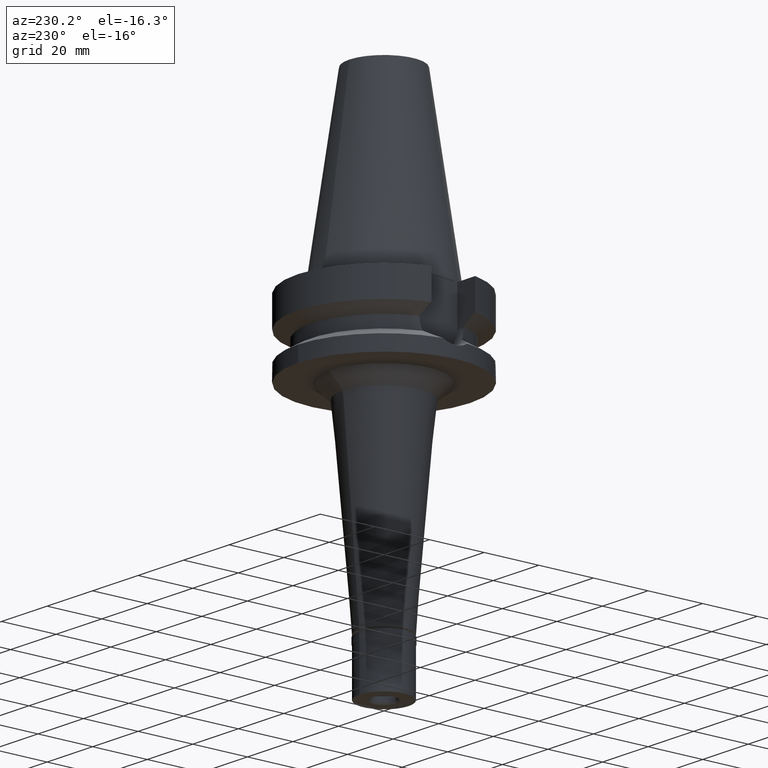
[diagram: clean part render]
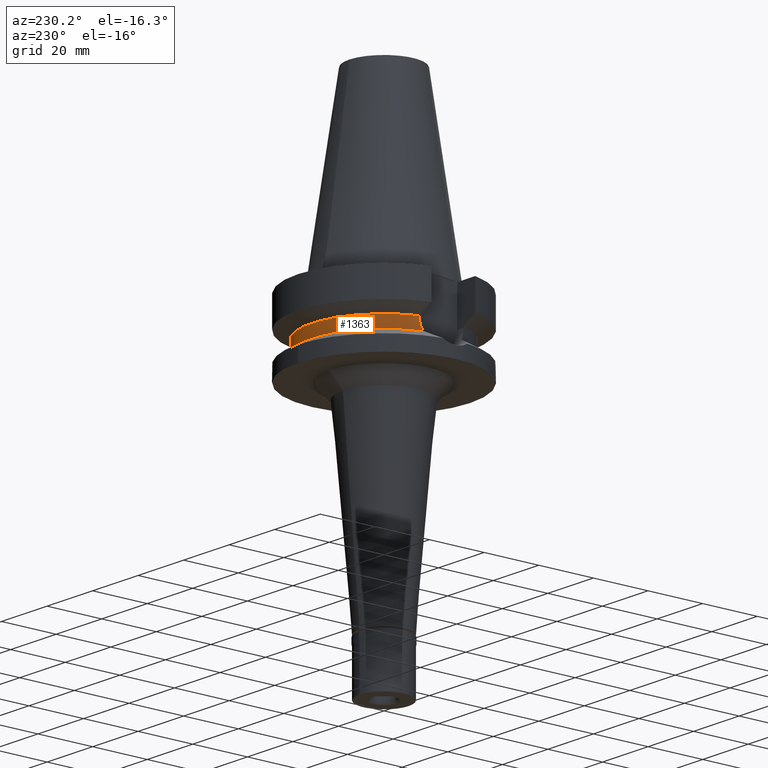
[diagram: same view with one face highlighted and labeled with its STEP entity id]
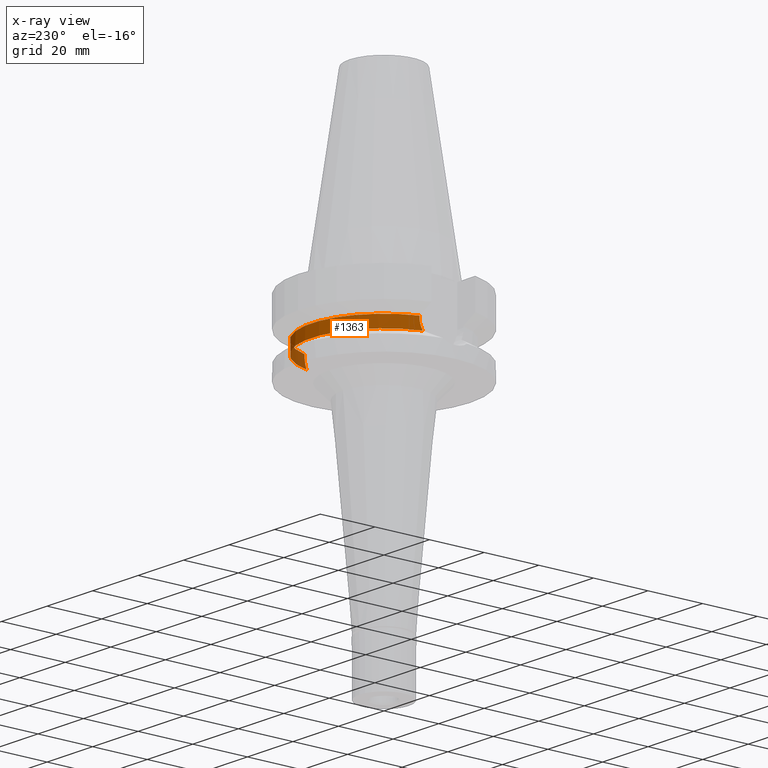
[diagram: x-ray of the same camera — body ghosted, the highlighted face saturated]
A machine part, auxiliary view. The second image highlights one B-rep face of the part: STEP entity #1363.
The next image is the same camera in x-ray: the body ghosted, the highlighted face saturated — about 9% of this face is hidden behind the body in this view.
In plain terms, the highlighted cylindrical surface (partial cylindrical patch) has radius 26.5 mm, axis along (0, 0, -1).
Its self-contained STEP definition (entity closure, byte-faithful):
#5 = CARTESIAN_POINT ( 'NONE',  ( -25.31648570732019010, 7.831303109277718555, -16.81376729957127125 ) ) ;
#28 = VERTEX_POINT ( 'NONE', #2082 ) ;
#31 = VERTEX_POINT ( 'NONE', #211 ) ;
#34 = LINE ( 'NONE', #1844, #2414 ) ;
#41 = VECTOR ( 'NONE', #323, 1000.000000000000114 ) ;
#88 = VERTEX_POINT ( 'NONE', #638 ) ;
#92 = CIRCLE ( 'NONE', #541, 26.49999999999998224 ) ;
#193 = VERTEX_POINT ( 'NONE', #728 ) ;
#211 = CARTESIAN_POINT ( 'NONE',  ( -25.24772266958000344, 8.050000000000000711, -14.94999999999999929 ) ) ;
#212 = CARTESIAN_POINT ( 'NONE',  ( 25.32549585278761128, 7.802104298500830204, -16.93243209947562988 ) ) ;
#241 = CARTESIAN_POINT ( 'NONE',  ( -25.29452346095225934, 7.902092865018188306, -16.48827265655966201 ) ) ;
#323 = DIRECTION ( 'NONE',  ( 2.936614295683921347E-06, -9.210294385062750742E-06, 0.9999999999532733774 ) ) ;
#372 = ORIENTED_EDGE ( 'NONE', *, *, #1785, .F. ) ;
#376 = EDGE_CURVE ( 'NONE', #88, #852, #92, .T. ) ;
#397 = DIRECTION ( 'NONE',  ( 0.0000000000000000000, 0.0000000000000000000, 1.000000000000000000 ) ) ;
#463 = CYLINDRICAL_SURFACE ( 'NONE', #710, 26.50000000000000000 ) ;
#471 = CARTESIAN_POINT ( 'NONE',  ( -25.32118071774149826, 7.816100027251812854, -16.87651110714138625 ) ) ;
#477 = CARTESIAN_POINT ( 'NONE',  ( 25.33291921434090810, 7.778007550391908609, -17.02550036344280215 ) ) ;
#520 = DIRECTION ( 'NONE',  ( 0.0000000000000000000, 0.0000000000000000000, -1.000000000000000000 ) ) ;
#541 = AXIS2_PLACEMENT_3D ( 'NONE', #2240, #397, #1517 ) ;
#564 = LINE ( 'NONE', #2373, #41 ) ;
#604 = B_SPLINE_CURVE_WITH_KNOTS ( 'NONE', 3,
 ( #2054, #1141, #2539, #673, #2078, #241, #1367, #2947, #5, #2028, #471, #1170, #2280, #914 ),
 .UNSPECIFIED., .F., .F.,
 ( 4, 2, 2, 1, 1, 2, 2, 4 ),
 ( 0.0000000000000000000, 0.2499999999999824030, 0.3749999999999749645, 0.4374999999999711897, 0.4687499999999705791, 0.4843749999999713007, 0.4999999999999720224, 1.000000000000000000 ),
 .UNSPECIFIED. ) ;
#638 = CARTESIAN_POINT ( 'NONE',  ( 25.53175183775000079, 7.097862220092999941, -18.74774300138999905 ) ) ;
#673 = CARTESIAN_POINT ( 'NONE',  ( -25.27268309164520232, 7.971812745160164582, -16.08115051884209734 ) ) ;
#676 = CARTESIAN_POINT ( 'NONE',  ( 25.53175183775000079, 7.097862220092999941, -18.74774300138999905 ) ) ;
#710 = AXIS2_PLACEMENT_3D ( 'NONE', #1835, #2030, #2001 ) ;
#717 = CARTESIAN_POINT ( 'NONE',  ( 25.32418608982703745, 7.806352244000168916, -16.91565584311440062 ) ) ;
#728 = CARTESIAN_POINT ( 'NONE',  ( 25.24772266958000344, 8.050000000000000711, -14.94999999999999929 ) ) ;
#780 = ORIENTED_EDGE ( 'NONE', *, *, #2873, .F. ) ;
#852 = VERTEX_POINT ( 'NONE', #2382 ) ;
#886 = CARTESIAN_POINT ( 'NONE',  ( 25.24772266958000344, 8.050000000000000711, -15.58995880483253416 ) ) ;
#904 = B_SPLINE_CURVE_WITH_KNOTS ( 'NONE', 3,
 ( #676, #2970, #2083, #1868, #1610, #2948, #1822, #477, #1848, #212, #717, #1629, #886, #1805 ),
 .UNSPECIFIED., .F., .F.,
 ( 4, 2, 2, 1, 1, 2, 2, 4 ),
 ( 0.0000000000000000000, 0.2499999999999930611, 0.3749999999999896749, 0.4374999999999879541, 0.4687499999999859002, 0.4843749999999861777, 0.4999999999999864553, 1.000000000000000000 ),
 .UNSPECIFIED. ) ;
#914 = CARTESIAN_POINT ( 'NONE',  ( -25.53175183775000079, 7.097862220092999941, -18.74774300138999905 ) ) ;
#1084 = CIRCLE ( 'NONE', #2143, 26.50000000000000711 ) ;
#1141 = CARTESIAN_POINT ( 'NONE',  ( -25.24772266957999634, 8.050000000000018474, -15.26991016306199889 ) ) ;
#1170 = CARTESIAN_POINT ( 'NONE',  ( -25.36814691286744505, 7.663833599051019796, -17.48802854146694585 ) ) ;
#1363 = ADVANCED_FACE ( 'NONE', ( #2740 ), #463, .T. ) ;
#1367 = CARTESIAN_POINT ( 'NONE',  ( -25.30212858955027144, 7.877670097768182167, -16.61040846295115614 ) ) ;
#1517 = DIRECTION ( 'NONE',  ( 0.9634623335000935818, 0.2678438573619981722, 0.0000000000000000000 ) ) ;
#1543 = ORIENTED_EDGE ( 'NONE', *, *, #2842, .F. ) ;
#1606 = DIRECTION ( 'NONE',  ( -1.016047385987006134E-06, -3.186695316802020634E-06, -0.9999999999944062523 ) ) ;
#1610 = CARTESIAN_POINT ( 'NONE',  ( 25.37572268659838670, 7.637742846877074498, -17.49808964569509229 ) ) ;
#1629 = CARTESIAN_POINT ( 'NONE',  ( 25.27269031700760493, 7.973298021038417893, -16.24529443267774553 ) ) ;
#1698 = ORIENTED_EDGE ( 'NONE', *, *, #376, .T. ) ;
#1785 = EDGE_CURVE ( 'NONE', #193, #28, #564, .T. ) ;
#1805 = CARTESIAN_POINT ( 'NONE',  ( 25.24772266958000344, 8.050000000000000711, -14.94999999999999929 ) ) ;
#1822 = CARTESIAN_POINT ( 'NONE',  ( 25.34387350812916395, 7.742366891133523943, -17.15655251596354347 ) ) ;
#1835 = CARTESIAN_POINT ( 'NONE',  ( 0.0000000000000000000, 2.136273876432999670E-14, 74.44000000000001194 ) ) ;
#1837 = EDGE_CURVE ( 'NONE', #2560, #28, #1084, .T. ) ;
#1844 = CARTESIAN_POINT ( 'NONE',  ( -25.24772216384000245, 8.050001586193999970, -14.45224487869000107 ) ) ;
#1848 = CARTESIAN_POINT ( 'NONE',  ( 25.32843688206706290, 7.792560665373273743, -16.96962045696555776 ) ) ;
#1868 = CARTESIAN_POINT ( 'NONE',  ( 25.39163972052291740, 7.584838823494640003, -17.65189279969743552 ) ) ;
#1880 = CARTESIAN_POINT ( 'NONE',  ( -25.24772216384000245, 8.050001586193999970, -14.45224487869000107 ) ) ;
#1888 = CARTESIAN_POINT ( 'NONE',  ( 0.0000000000000000000, 1.065333950388000029E-14, -14.45225699861000024 ) ) ;
#2001 = DIRECTION ( 'NONE',  ( 0.0000000000000000000, -1.000000000000000000, 0.0000000000000000000 ) ) ;
#2020 = ORIENTED_EDGE ( 'NONE', *, *, #2416, .F. ) ;
#2028 = CARTESIAN_POINT ( 'NONE',  ( -25.31950825842964292, 7.821518470895145292, -16.85441217854224405 ) ) ;
#2030 = DIRECTION ( 'NONE',  ( 0.0000000000000000000, 0.0000000000000000000, -1.000000000000000000 ) ) ;
#2040 = EDGE_LOOP ( 'NONE', ( #2073, #372, #2020, #1698, #1543, #780 ) ) ;
#2054 = CARTESIAN_POINT ( 'NONE',  ( -25.24772266958000344, 8.050000000000000711, -14.94999999999999929 ) ) ;
#2073 = ORIENTED_EDGE ( 'NONE', *, *, #1837, .T. ) ;
#2078 = CARTESIAN_POINT ( 'NONE',  ( -25.28048322354058541, 7.947042364860029018, -16.24399973117504103 ) ) ;
#2082 = CARTESIAN_POINT ( 'NONE',  ( 25.24772413116000180, 8.049995415963000056, -14.45229202664000034 ) ) ;
#2083 = CARTESIAN_POINT ( 'NONE',  ( 25.44392127699472184, 7.408263445644453604, -18.11704143290260660 ) ) ;
#2143 = AXIS2_PLACEMENT_3D ( 'NONE', #1888, #520, #2817 ) ;
#2240 = CARTESIAN_POINT ( 'NONE',  ( 0.0000000000000000000, 0.0000000000000000000, -18.74774300138999905 ) ) ;
#2280 = CARTESIAN_POINT ( 'NONE',  ( -25.43786288019223818, 7.435590607933135310, -18.11653926700328654 ) ) ;
#2373 = CARTESIAN_POINT ( 'NONE',  ( 25.24772266958000344, 8.050000000000000711, -14.94999999999999929 ) ) ;
#2382 = CARTESIAN_POINT ( 'NONE',  ( -25.53175183775000079, 7.097862220092999941, -18.74774300138999905 ) ) ;
#2414 = VECTOR ( 'NONE', #1606, 1000.000000000000227 ) ;
#2416 = EDGE_CURVE ( 'NONE', #88, #193, #904, .T. ) ;
#2539 = CARTESIAN_POINT ( 'NONE',  ( -25.25396277509629783, 8.030907860994284775, -15.59359823563988634 ) ) ;
#2560 = VERTEX_POINT ( 'NONE', #1880 ) ;
#2740 = FACE_OUTER_BOUND ( 'NONE', #2040, .T. ) ;
#2817 = DIRECTION ( 'NONE',  ( -0.9527442516822307583, 0.3037735849057093818, 0.0000000000000000000 ) ) ;
#2842 = EDGE_CURVE ( 'NONE', #31, #852, #604, .T. ) ;
#2873 = EDGE_CURVE ( 'NONE', #2560, #31, #34, .T. ) ;
#2947 = CARTESIAN_POINT ( 'NONE',  ( -25.31202500689251877, 7.845732311878355958, -16.75278555882618292 ) ) ;
#2948 = CARTESIAN_POINT ( 'NONE',  ( 25.35411236306071814, 7.708864339756916095, -17.26996869603973650 ) ) ;
#2970 = CARTESIAN_POINT ( 'NONE',  ( 25.48481625424021146, 7.266694416791612099, -18.43220093599513021 ) ) ;